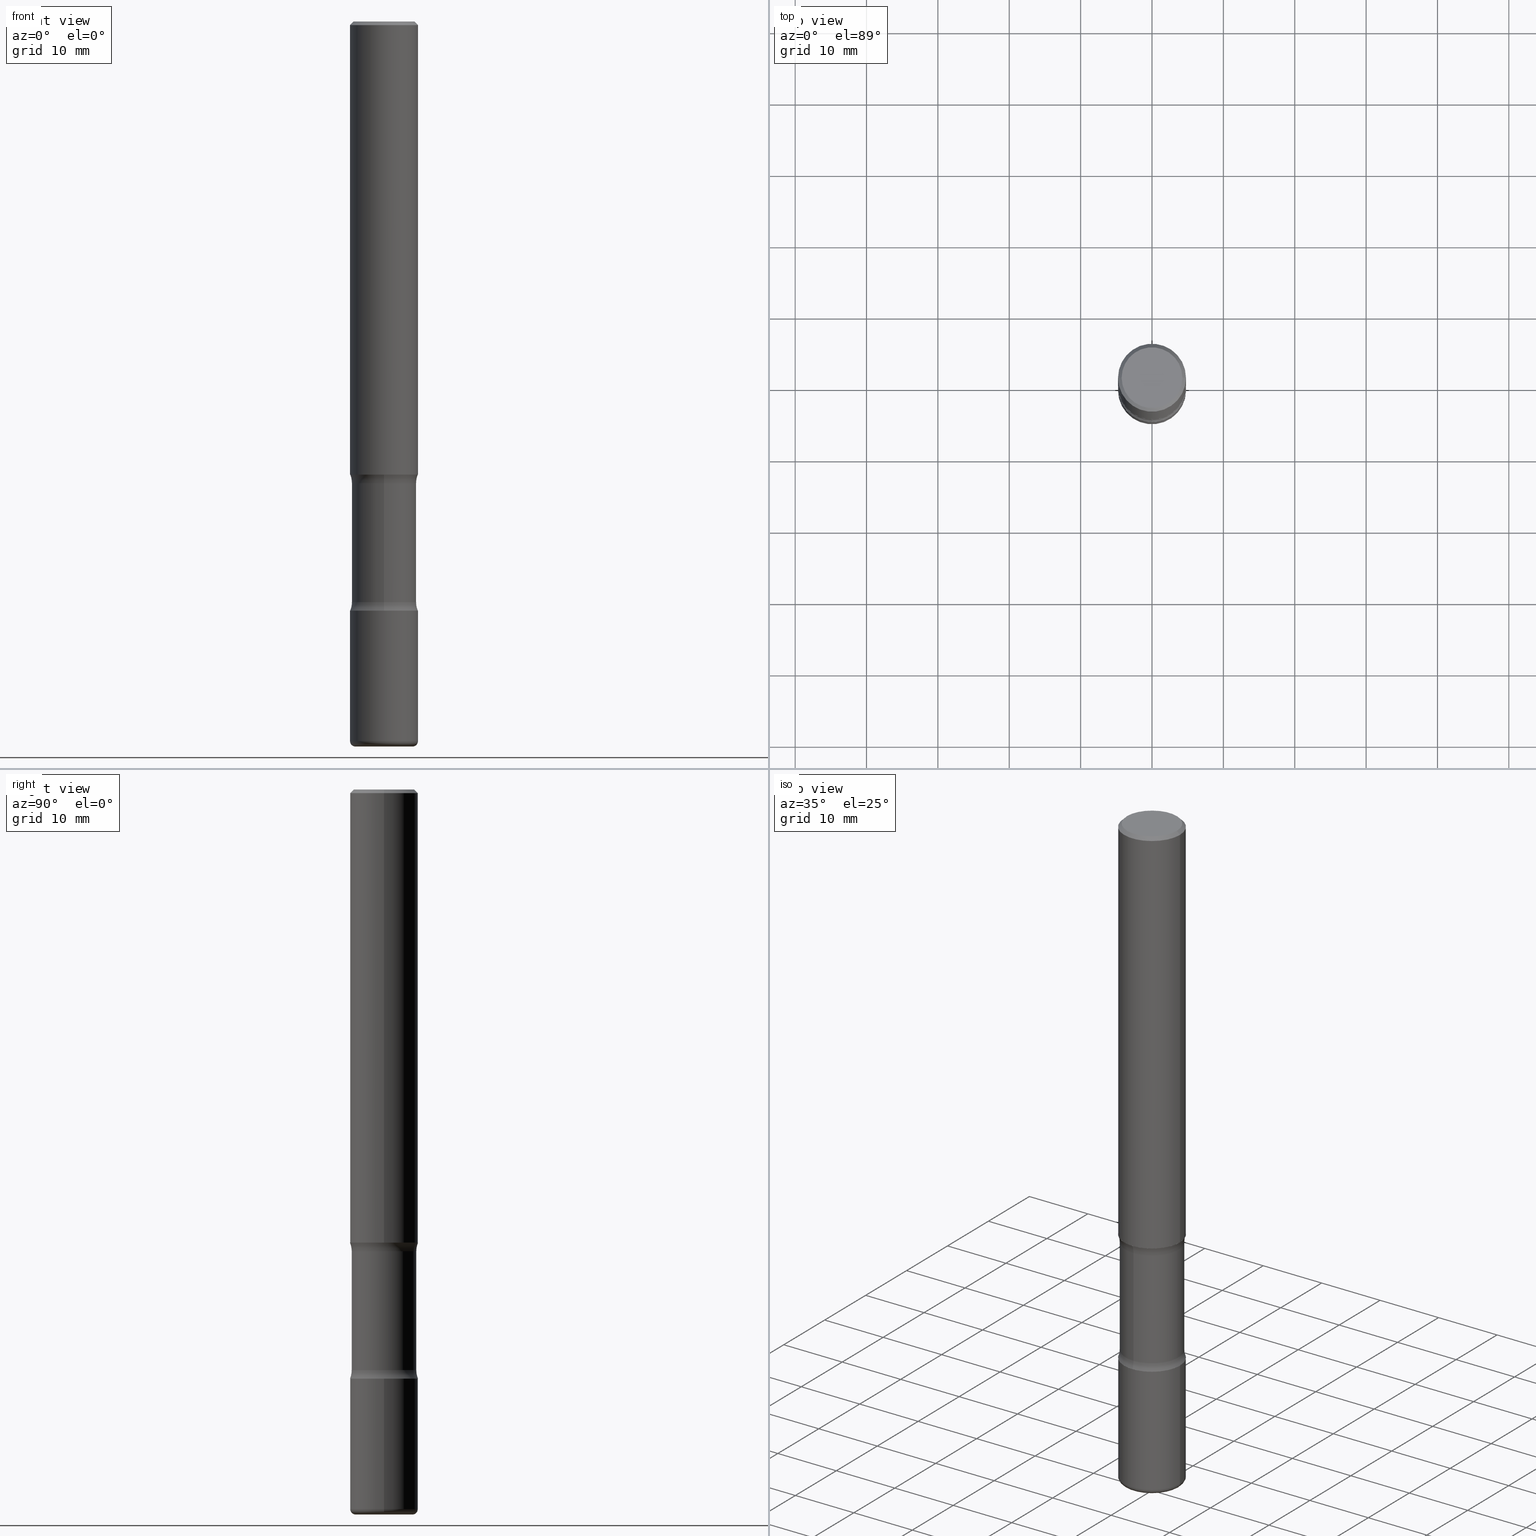
[diagram: canonical four-view strip — front | top / right | iso, engineering-drawing reading convention]
A machine part, canonical four-view strip (front | top / right | iso — engineering-drawing reading convention). The complete STEP part file that produces these views, byte-faithful:
ISO-10303-21;
HEADER;
FILE_DESCRIPTION (( 'STEP AP203' ),
    '1' );
FILE_NAME ('37845.STEP',
    '2024-03-02T00:44:23',
    ( '' ),
    ( '' ),
    'SwSTEP 2.0',
    'SolidWorks 2023',
    '' );
FILE_SCHEMA (( 'CONFIG_CONTROL_DESIGN' ));
ENDSEC;

DATA;
#1 = CARTESIAN_POINT ( 'NONE',  ( 0.000000000000000000, 0.000000000000000000, 0.000000000000000000 ) ) ;
#2 = CLOSED_SHELL ( 'NONE', ( #389, #355, #12, #105, #476, #158 ) ) ;
#3 = CIRCLE ( 'NONE', #180, 0.02999999999999967970 ) ;
#4 = SECURITY_CLASSIFICATION ( '', '', #125 ) ;
#5 = CARTESIAN_POINT ( 'NONE',  ( 2.116710561673727694E-15, 0.3031249999999888201, -3.202504112020092997 ) ) ;
#6 = EDGE_CURVE ( 'NONE', #333, #268, #541, .T. ) ;
#7 = DIRECTION ( 'NONE',  ( -6.982962677686266711E-15, -1.000000000000000000, 3.491481338843145583E-15 ) ) ;
#8 = DIRECTION ( 'NONE',  ( 2.438088387897960049E-29, -3.491481338843145188E-15, -1.000000000000000000 ) ) ;
#9 = ORIENTED_EDGE ( 'NONE', *, *, #119, .F. ) ;
#10 = CARTESIAN_POINT ( 'NONE',  ( 0.000000000000000000, 0.000000000000000000, 0.000000000000000000 ) ) ;
#11 = DIRECTION ( 'NONE',  ( -6.982962677686265922E-15, -1.000000000000000000, 3.329354077496592524E-15 ) ) ;
#12 = ADVANCED_FACE ( 'NONE', ( #447 ), #106, .T. ) ;
#13 = CARTESIAN_POINT ( 'NONE',  ( 1.309305502066236145E-15, 0.1874999999999913125, -2.500000000000000444 ) ) ;
#14 = CARTESIAN_POINT ( 'NONE',  ( 0.1874999999999999722, -1.517048641727346712E-14, -3.970000000000000639 ) ) ;
#15 = VERTEX_POINT ( 'NONE', #152 ) ;
#16 = CONICAL_SURFACE ( 'NONE', #137, 0.1874999999999999167, 0.7853981633974472798 ) ;
#17 = CIRCLE ( 'NONE', #550, 0.1875000000000000833 ) ;
#18 = FACE_OUTER_BOUND ( 'NONE', #209, .T. ) ;
#19 = ADVANCED_FACE ( 'NONE', ( #539 ), #287, .T. ) ;
#20 = ADVANCED_FACE ( 'NONE', ( #324 ), #87, .T. ) ;
#21 = ADVANCED_FACE ( 'NONE', ( #556 ), #179, .T. ) ;
#22 = ORIENTED_EDGE ( 'NONE', *, *, #240, .T. ) ;
#23 = DIRECTION ( 'NONE',  ( -1.000000000000000000, 6.982962677686265922E-15, -4.876176775795935793E-29 ) ) ;
#24 = ORIENTED_EDGE ( 'NONE', *, *, #535, .F. ) ;
#25 = ORIENTED_EDGE ( 'NONE', *, *, #535, .T. ) ;
#26 = DIRECTION ( 'NONE',  ( 2.438088387897960049E-29, -3.491481338843145188E-15, -1.000000000000000000 ) ) ;
#27 = DIRECTION ( 'NONE',  ( 1.000000000000000000, -6.982962677686269866E-15, 0.000000000000000000 ) ) ;
#28 = VERTEX_POINT ( 'NONE', #279 ) ;
#29 = AXIS2_PLACEMENT_3D ( 'NONE', #401, #526, #242 ) ;
#30 = AXIS2_PLACEMENT_3D ( 'NONE', #469, #312, #217 ) ;
#31 = ORIENTED_EDGE ( 'NONE', *, *, #280, .T. ) ;
#32 = DIRECTION ( 'NONE',  ( 1.000000000000000000, -6.982962677686269077E-15, 0.000000000000000000 ) ) ;
#33 = DIRECTION ( 'NONE',  ( -2.445468806185136597E-29, 3.491481338843145583E-15, 1.000000000000000000 ) ) ;
#34 = EDGE_CURVE ( 'NONE', #15, #254, #295, .T. ) ;
#35 = DIRECTION ( 'NONE',  ( 2.558681667686983511E-29, -3.329354077496592524E-15, -1.000000000000000000 ) ) ;
#36 = LINE ( 'NONE', #133, #301 ) ;
#37 = CARTESIAN_POINT ( 'NONE',  ( 6.113672015462842613E-29, -8.728703347107864943E-15, -2.500000000000000000 ) ) ;
#38 = PLANE ( 'NONE',  #471 ) ;
#39 = DIRECTION ( 'NONE',  ( -2.445468806185136597E-29, 3.491481338843145583E-15, 1.000000000000000000 ) ) ;
#40 = PERSON_AND_ORGANIZATION ( #489, #310 ) ;
#41 = PERSON_AND_ORGANIZATION ( #489, #310 ) ;
#42 = CIRCLE ( 'NONE', #382, 0.1875000000000001110 ) ;
#43 = CALENDAR_DATE ( 2024, 1, 3 ) ;
#44 = UNCERTAINTY_MEASURE_WITH_UNIT (LENGTH_MEASURE( 1.000000000000000082E-05 ), #392, 'distance_accuracy_value', 'NONE');
#45 = VERTEX_POINT ( 'NONE', #14 ) ;
#46 = FACE_OUTER_BOUND ( 'NONE', #410, .T. ) ;
#47 = APPROVAL_STATUS ( 'not_yet_approved' ) ;
#48 = DIRECTION ( 'NONE',  ( 6.982962677686266711E-15, 1.000000000000000000, -3.329354077496592130E-15 ) ) ;
#49 = EDGE_CURVE ( 'NONE', #200, #108, #327, .T. ) ;
#50 = CARTESIAN_POINT ( 'NONE',  ( 7.826246762236988201E-29, -1.118918372292999451E-14, -3.202504112020091664 ) ) ;
#51 = DIRECTION ( 'NONE',  ( -1.000000000000000000, 6.982962677686265922E-15, -4.883557194083112901E-29 ) ) ;
#52 = AXIS2_PLACEMENT_3D ( 'NONE', #494, #528, #144 ) ;
#53 = ADVANCED_FACE ( 'NONE', ( #492 ), #170, .F. ) ;
#54 = CIRCLE ( 'NONE', #318, 0.1874999999999999167 ) ;
#55 = LINE ( 'NONE', #58, #207 ) ;
#56 = DIRECTION ( 'NONE',  ( -2.445468806185136877E-29, 3.491481338843145188E-15, 1.000000000000000000 ) ) ;
#57 = ADVANCED_FACE ( 'NONE', ( #331 ), #253, .F. ) ;
#58 = CARTESIAN_POINT ( 'NONE',  ( -0.1875000000000000278, 1.332267629550188046E-15, -9.223003294227947991E-30 ) ) ;
#59 = CARTESIAN_POINT ( 'NONE',  ( 6.150289227201164007E-29, -9.008429421428009851E-15, -2.547495887979908780 ) ) ;
#60 = ORIENTED_EDGE ( 'NONE', *, *, #112, .F. ) ;
#61 = DIRECTION ( 'NONE',  ( 2.558681667686983511E-29, -3.329354077496592524E-15, -1.000000000000000000 ) ) ;
#62 = ADVANCED_FACE ( 'NONE', ( #351 ), #524, .T. ) ;
#63 = CARTESIAN_POINT ( 'NONE',  ( 6.113672015462842613E-29, -8.728703347107864943E-15, -2.500000000000000000 ) ) ;
#64 = ORIENTED_EDGE ( 'NONE', *, *, #391, .T. ) ;
#65 = AXIS2_PLACEMENT_3D ( 'NONE', #427, #33, #168 ) ;
#66 = CIRCLE ( 'NONE', #216, 0.1875000000000001388 ) ;
#67 = DIRECTION ( 'NONE',  ( 2.438088387897960049E-29, -3.491481338843145188E-15, -1.000000000000000000 ) ) ;
#68 = ORIENTED_EDGE ( 'NONE', *, *, #112, .T. ) ;
#69 = EDGE_CURVE ( 'NONE', #254, #409, #54, .T. ) ;
#70 = ORIENTED_EDGE ( 'NONE', *, *, #430, .F. ) ;
#71 = ORIENTED_EDGE ( 'NONE', *, *, #417, .F. ) ;
#72 = AXIS2_PLACEMENT_3D ( 'NONE', #408, #288, #249 ) ;
#73 = AXIS2_PLACEMENT_3D ( 'NONE', #463, #304, #352 ) ;
#74 = DIMENSIONAL_EXPONENTS ( 1.000000000000000000, 0.000000000000000000, 0.000000000000000000, 0.000000000000000000, 0.000000000000000000, 0.000000000000000000, 0.000000000000000000 ) ;
#75 = CYLINDRICAL_SURFACE ( 'NONE', #30, 0.1875000000000001110 ) ;
#76 = EDGE_CURVE ( 'NONE', #127, #409, #518, .T. ) ;
#77 = ORIENTED_EDGE ( 'NONE', *, *, #367, .F. ) ;
#78 = DIRECTION ( 'NONE',  ( -2.438088387897960049E-29, 3.491481338843145188E-15, 1.000000000000000000 ) ) ;
#79 = CC_DESIGN_DATE_AND_TIME_ASSIGNMENT ( #464, #384, ( #4 ) ) ;
#80 = CARTESIAN_POINT ( 'NONE',  ( 0.1875000000000000278, -1.309305502066175008E-15, 9.142831454617381013E-30 ) ) ;
#81 = EDGE_LOOP ( 'NONE', ( #373, #455 ) ) ;
#82 = AXIS2_PLACEMENT_3D ( 'NONE', #532, #51, #277 ) ;
#83 = CIRCLE ( 'NONE', #500, 0.1875000000000001110 ) ;
#84 = EDGE_LOOP ( 'NONE', ( #428, #31, #285, #9 ) ) ;
#85 = DIRECTION ( 'NONE',  ( 2.558681667686983511E-29, -3.329354077496592524E-15, -1.000000000000000000 ) ) ;
#86 = PERSON_AND_ORGANIZATION ( #489, #310 ) ;
#87 = CYLINDRICAL_SURFACE ( 'NONE', #100, 0.1781249999999999500 ) ;
#88 = EDGE_CURVE ( 'NONE', #45, #200, #36, .T. ) ;
#89 = ORIENTED_EDGE ( 'NONE', *, *, #547, .T. ) ;
#90 = DATE_AND_TIME ( #439, #283 ) ;
#91 = DIRECTION ( 'NONE',  ( 2.558681667686983511E-29, -3.329354077496592524E-15, -1.000000000000000000 ) ) ;
#92 = TOROIDAL_SURFACE ( 'NONE', #459, 0.3031249999999999778, 0.1250000000000000278 ) ;
#93 = LOCAL_TIME ( 19, 44, 23.00000000000000000, #178 ) ;
#94 = DATE_AND_TIME ( #482, #171 ) ;
#95 = ADVANCED_FACE ( 'NONE', ( #126 ), #92, .F. ) ;
#96 = CARTESIAN_POINT ( 'NONE',  ( 1.243840226962964471E-15, 0.1781249999999861278, -4.000000000000000888 ) ) ;
#97 = DIRECTION ( 'NONE',  ( -2.445468806185136597E-29, 3.491481338843145583E-15, 1.000000000000000000 ) ) ;
#98 = CARTESIAN_POINT ( 'NONE',  ( 1.243840226962943961E-15, 0.1781249999999887368, -3.202504112020092553 ) ) ;
#99 = DIRECTION ( 'NONE',  ( 1.000000000000000000, -6.982962677686263555E-15, 0.000000000000000000 ) ) ;
#100 = AXIS2_PLACEMENT_3D ( 'NONE', #431, #225, #390 ) ;
#101 = PRODUCT_DEFINITION_FORMATION_WITH_SPECIFIED_SOURCE ( 'ANY', '', #117, .NOT_KNOWN. ) ;
#102 = DIRECTION ( 'NONE',  ( 1.000000000000000000, -6.982962677686277755E-15, 0.000000000000000000 ) ) ;
#103 = VERTEX_POINT ( 'NONE', #404 ) ;
#104 = ORIENTED_EDGE ( 'NONE', *, *, #429, .F. ) ;
#105 = ADVANCED_FACE ( 'NONE', ( #317 ), #506, .T. ) ;
#106 = PLANE ( 'NONE',  #515 ) ;
#107 = ORIENTED_EDGE ( 'NONE', *, *, #88, .F. ) ;
#108 = VERTEX_POINT ( 'NONE', #241 ) ;
#109 = ORIENTED_EDGE ( 'NONE', *, *, #379, .T. ) ;
#110 = AXIS2_PLACEMENT_3D ( 'NONE', #449, #61, #334 ) ;
#111 = LOCAL_TIME ( 19, 44, 23.00000000000000000, #423 ) ;
#112 = EDGE_CURVE ( 'NONE', #262, #164, #342, .T. ) ;
#113 = DIRECTION ( 'NONE',  ( -2.445468806185136597E-29, 3.491481338843145583E-15, 1.000000000000000000 ) ) ;
#114 = VERTEX_POINT ( 'NONE', #365 ) ;
#115 = APPLICATION_CONTEXT ( 'configuration controlled 3d designs of mechanical parts and assemblies' ) ;
#116 = CC_DESIGN_PERSON_AND_ORGANIZATION_ASSIGNMENT ( #40, #183, ( #339 ) ) ;
#117 = PRODUCT ( '37845', '37845', '', ( #345 ) ) ;
#118 = ORIENTED_EDGE ( 'NONE', *, *, #167, .F. ) ;
#119 = EDGE_CURVE ( 'NONE', #28, #377, #248, .T. ) ;
#120 = AXIS2_PLACEMENT_3D ( 'NONE', #438, #395, #322 ) ;
#121 = CARTESIAN_POINT ( 'NONE',  ( 0.000000000000000000, 0.000000000000000000, 0.000000000000000000 ) ) ;
#122 = AXIS2_PLACEMENT_3D ( 'NONE', #380, #549, #166 ) ;
#123 = ADVANCED_FACE ( 'NONE', ( #46 ), #481, .F. ) ;
#124 = DIRECTION ( 'NONE',  ( 6.982962677686266711E-15, 1.000000000000000000, -2.913971193241878794E-15 ) ) ;
#125 = SECURITY_CLASSIFICATION_LEVEL ( 'unclassified' ) ;
#126 = FACE_OUTER_BOUND ( 'NONE', #332, .T. ) ;
#127 = VERTEX_POINT ( 'NONE', #399 ) ;
#128 = CARTESIAN_POINT ( 'NONE',  ( 4.890937612370289799E-31, -6.982962677686315028E-17, -0.02000000000000006981 ) ) ;
#129 = CARTESIAN_POINT ( 'NONE',  ( 4.890937612370289799E-31, -6.982962677686315028E-17, -0.02000000000000006981 ) ) ;
#130 = CIRCLE ( 'NONE', #256, 0.1674999999999998990 ) ;
#131 = DIRECTION ( 'NONE',  ( 1.000000000000000000, -6.982962677686269077E-15, 0.000000000000000000 ) ) ;
#132 = DIRECTION ( 'NONE',  ( 1.000000000000000000, -6.982962677686265922E-15, 4.876176775795935793E-29 ) ) ;
#133 = CARTESIAN_POINT ( 'NONE',  ( 0.1875000000000001110, -1.309305502066175797E-15, 9.142831454617385217E-30 ) ) ;
#134 = DIRECTION ( 'NONE',  ( 6.860497997771532351E-15, 1.000000000000000000, 0.000000000000000000 ) ) ;
#135 = ORIENTED_EDGE ( 'NONE', *, *, #338, .F. ) ;
#136 = DIRECTION ( 'NONE',  ( 2.558681667686983511E-29, -3.329354077496592524E-15, -1.000000000000000000 ) ) ;
#137 = AXIS2_PLACEMENT_3D ( 'NONE', #457, #461, #415 ) ;
#138 = CC_DESIGN_APPROVAL ( #297, ( #339 ) ) ;
#139 = CARTESIAN_POINT ( 'NONE',  ( 6.150289227201164007E-29, -9.008429421428009851E-15, -2.547495887979908780 ) ) ;
#140 = LINE ( 'NONE', #96, #376 ) ;
#141 = CARTESIAN_POINT ( 'NONE',  ( 6.113672015462842613E-29, -8.728703347107864943E-15, -2.500000000000000000 ) ) ;
#142 = CARTESIAN_POINT ( 'NONE',  ( 0.000000000000000000, 0.000000000000000000, 0.000000000000000000 ) ) ;
#143 = EDGE_CURVE ( 'NONE', #268, #377, #414, .T. ) ;
#144 = DIRECTION ( 'NONE',  ( 6.982962677686266711E-15, 1.000000000000000000, -2.913971193241879583E-15 ) ) ;
#145 = CARTESIAN_POINT ( 'NONE',  ( 0.1875000000000000833, -1.265661985330640259E-14, -3.250000000000000444 ) ) ;
#146 = DIRECTION ( 'NONE',  ( 2.558681667686983511E-29, -3.329354077496592524E-15, -1.000000000000000000 ) ) ;
#147 = CARTESIAN_POINT ( 'NONE',  ( -0.1575000000000001676, -1.274207610638513136E-14, -3.970000000000000639 ) ) ;
#148 = AXIS2_PLACEMENT_3D ( 'NONE', #357, #278, #274 ) ;
#149 = ORIENTED_EDGE ( 'NONE', *, *, #76, .T. ) ;
#150 = DIRECTION ( 'NONE',  ( 6.982962677686265133E-15, 1.000000000000000000, -3.067338098149349483E-15 ) ) ;
#151 = CARTESIAN_POINT ( 'NONE',  ( 7.947773620101696182E-29, -1.134731435124022600E-14, -3.250000000000000444 ) ) ;
#152 = CARTESIAN_POINT ( 'NONE',  ( 0.1875000000000001110, -1.003800884917403995E-14, -2.500000000000000000 ) ) ;
#153 = DIRECTION ( 'NONE',  ( 2.558681667686983511E-29, -3.329354077496592524E-15, -1.000000000000000000 ) ) ;
#154 = EDGE_LOOP ( 'NONE', ( #155, #172 ) ) ;
#155 = ORIENTED_EDGE ( 'NONE', *, *, #203, .F. ) ;
#156 = ORIENTED_EDGE ( 'NONE', *, *, #119, .T. ) ;
#157 = EDGE_CURVE ( 'NONE', #15, #502, #400, .T. ) ;
#158 = ADVANCED_FACE ( 'NONE', ( #364 ), #485, .F. ) ;
#159 = EDGE_LOOP ( 'NONE', ( #560, #540, #468, #413 ) ) ;
#160 = CLOSED_SHELL ( 'NONE', ( #521, #62, #218, #57, #437, #21 ) ) ;
#161 = ORIENTED_EDGE ( 'NONE', *, *, #417, .T. ) ;
#162 = TOROIDAL_SURFACE ( 'NONE', #452, 0.3031249999999999778, 0.1250000000000000278 ) ;
#163 = DIRECTION ( 'NONE',  ( -2.445468806185136597E-29, 3.491481338843145583E-15, 1.000000000000000000 ) ) ;
#164 = VERTEX_POINT ( 'NONE', #488 ) ;
#165 = APPLICATION_PROTOCOL_DEFINITION ( 'international standard', 'config_control_design', 1994, #115 ) ;
#166 = DIRECTION ( 'NONE',  ( 1.000000000000000000, -6.982962677686267499E-15, 0.000000000000000000 ) ) ;
#167 = EDGE_CURVE ( 'NONE', #502, #15, #42, .T. ) ;
#168 = DIRECTION ( 'NONE',  ( 1.000000000000000000, -6.982962677686265922E-15, 4.876176775795935793E-29 ) ) ;
#169 = CALENDAR_DATE ( 2024, 1, 3 ) ;
#170 = TOROIDAL_SURFACE ( 'NONE', #72, 0.3031249999999999778, 0.1250000000000000278 ) ;
#171 = LOCAL_TIME ( 19, 44, 23.00000000000000000, #224 ) ;
#172 = ORIENTED_EDGE ( 'NONE', *, *, #547, .F. ) ;
#173 = CARTESIAN_POINT ( 'NONE',  ( 0.1874999999999999167, -1.356173001359024677E-15, -0.02000000000000006981 ) ) ;
#174 = PERSON_AND_ORGANIZATION ( #489, #310 ) ;
#175 = ORIENTED_EDGE ( 'NONE', *, *, #240, .F. ) ;
#176 = DIRECTION ( 'NONE',  ( -2.445468806185136597E-29, 3.491481338843145583E-15, 1.000000000000000000 ) ) ;
#177 =( LENGTH_UNIT ( ) NAMED_UNIT ( * ) SI_UNIT ( $, .METRE. ) );
#178 = COORDINATED_UNIVERSAL_TIME_OFFSET ( 5, 0, .BEHIND. ) ;
#179 = CYLINDRICAL_SURFACE ( 'NONE', #65, 0.1875000000000000278 ) ;
#180 = AXIS2_PLACEMENT_3D ( 'NONE', #147, #363, #491 ) ;
#181 = AXIS2_PLACEMENT_3D ( 'NONE', #323, #208, #286 ) ;
#182 = CYLINDRICAL_SURFACE ( 'NONE', #361, 0.1875000000000000278 ) ;
#183 = PERSON_AND_ORGANIZATION_ROLE ( 'creator' ) ;
#184 = EDGE_CURVE ( 'NONE', #502, #409, #55, .T. ) ;
#185 = FACE_OUTER_BOUND ( 'NONE', #375, .T. ) ;
#186 = APPLICATION_CONTEXT ( 'configuration controlled 3d designs of mechanical parts and assemblies' ) ;
#187 = DIRECTION ( 'NONE',  ( 6.982962677686266711E-15, 1.000000000000000000, -3.067338098149349089E-15 ) ) ;
#188 = CARTESIAN_POINT ( 'NONE',  ( 0.1874999999999999167, -1.356173001359024677E-15, -0.02000000000000006981 ) ) ;
#189 = CIRCLE ( 'NONE', #487, 0.1781249999999999500 ) ;
#190 = CIRCLE ( 'NONE', #181, 0.1250000000000000278 ) ;
#191 = DIRECTION ( 'NONE',  ( -1.000000000000000000, 6.982962677686265922E-15, -4.883557194083112901E-29 ) ) ;
#192 = ORIENTED_EDGE ( 'NONE', *, *, #246, .T. ) ;
#193 = CARTESIAN_POINT ( 'NONE',  ( 7.831623907624765469E-29, -1.118148334468659010E-14, -3.202504112020091664 ) ) ;
#194 = EDGE_CURVE ( 'NONE', #103, #262, #406, .T. ) ;
#195 = CC_DESIGN_DATE_AND_TIME_ASSIGNMENT ( #90, #511, ( #339 ) ) ;
#196 = CARTESIAN_POINT ( 'NONE',  ( 1.309305502066255275E-15, 0.1874999999999887867, -3.250000000000001332 ) ) ;
#197 = EDGE_LOOP ( 'NONE', ( #192, #453 ) ) ;
#198 = AXIS2_PLACEMENT_3D ( 'NONE', #239, #163, #498 ) ;
#199 = APPROVAL_PERSON_ORGANIZATION ( #86, #297, #386 ) ;
#200 = VERTEX_POINT ( 'NONE', #145 ) ;
#201 = ORIENTED_EDGE ( 'NONE', *, *, #338, .T. ) ;
#202 = CARTESIAN_POINT ( 'NONE',  ( -1.286343374582083282E-15, -0.1875000000000114075, -3.250000000000000000 ) ) ;
#203 = EDGE_CURVE ( 'NONE', #220, #205, #470, .T. ) ;
#204 = ORIENTED_EDGE ( 'NONE', *, *, #69, .T. ) ;
#205 = VERTEX_POINT ( 'NONE', #259 ) ;
#206 = DIRECTION ( 'NONE',  ( -1.000000000000000000, 6.982962677686265922E-15, -4.876176775795935793E-29 ) ) ;
#207 = VECTOR ( 'NONE', #231, 39.37007874015748143 ) ;
#208 = DIRECTION ( 'NONE',  ( 1.000000000000000000, -6.860497997771530774E-15, 4.842784365940769113E-29 ) ) ;
#209 = EDGE_LOOP ( 'NONE', ( #505, #22, #213, #107 ) ) ;
#210 = PERSON_AND_ORGANIZATION ( #489, #310 ) ;
#211 = MANIFOLD_SOLID_BREP ( 'Body-Move/Copy2[4]', #335 ) ;
#212 = DESIGN_CONTEXT ( 'detailed design', #115, 'design' ) ;
#213 = ORIENTED_EDGE ( 'NONE', *, *, #49, .F. ) ;
#214 = CIRCLE ( 'NONE', #292, 0.1674999999999998990 ) ;
#215 = DIRECTION ( 'NONE',  ( -2.445468806185136877E-29, 3.491481338843145188E-15, 1.000000000000000000 ) ) ;
#216 = AXIS2_PLACEMENT_3D ( 'NONE', #356, #85, #422 ) ;
#217 = DIRECTION ( 'NONE',  ( 1.000000000000000000, -6.982962677686266711E-15, 4.876176775795935793E-29 ) ) ;
#218 = ADVANCED_FACE ( 'NONE', ( #340 ), #16, .T. ) ;
#219 = MANIFOLD_SOLID_BREP ( 'Body-Move/Copy2[2]', #160 ) ;
#220 = VERTEX_POINT ( 'NONE', #548 ) ;
#221 = LINE ( 'NONE', #173, #302 ) ;
#222 = CC_DESIGN_PERSON_AND_ORGANIZATION_ASSIGNMENT ( #307, #313, ( #4 ) ) ;
#223 = DIRECTION ( 'NONE',  ( 1.000000000000000000, -6.982962677686265922E-15, 0.000000000000000000 ) ) ;
#224 = COORDINATED_UNIVERSAL_TIME_OFFSET ( 5, 0, .BEHIND. ) ;
#225 = DIRECTION ( 'NONE',  ( 2.558681667686983511E-29, -3.329354077496592524E-15, -1.000000000000000000 ) ) ;
#226 = FACE_OUTER_BOUND ( 'NONE', #472, .T. ) ;
#227 = DATE_AND_TIME ( #43, #111 ) ;
#228 = ADVANCED_FACE ( 'NONE', ( #293 ), #162, .F. ) ;
#229 = AXIS2_PLACEMENT_3D ( 'NONE', #232, #234, #11 ) ;
#230 = CC_DESIGN_PERSON_AND_ORGANIZATION_ASSIGNMENT ( #174, #348, ( #101 ) ) ;
#231 = DIRECTION ( 'NONE',  ( -2.445468806185136877E-29, 3.491481338843145188E-15, 1.000000000000000000 ) ) ;
#232 = CARTESIAN_POINT ( 'NONE',  ( 7.947773620101696182E-29, -1.134731435124022600E-14, -3.250000000000000444 ) ) ;
#233 = PERSON_AND_ORGANIZATION ( #489, #310 ) ;
#234 = DIRECTION ( 'NONE',  ( -2.558681667686982950E-29, 3.329354077496592524E-15, 1.000000000000000000 ) ) ;
#235 = DIRECTION ( 'NONE',  ( 1.000000000000000000, -6.982962677686269866E-15, 0.000000000000000000 ) ) ;
#236 = CIRCLE ( 'NONE', #542, 0.1875000000000000833 ) ;
#237 = VECTOR ( 'NONE', #136, 39.37007874015748143 ) ;
#238 = TOROIDAL_SURFACE ( 'NONE', #531, 0.3031249999999999778, 0.1250000000000000278 ) ;
#239 = CARTESIAN_POINT ( 'NONE',  ( 9.781875224740546387E-29, -1.396592535537258233E-14, -4.000000000000000000 ) ) ;
#240 = EDGE_CURVE ( 'NONE', #114, #108, #504, .T. ) ;
#241 = CARTESIAN_POINT ( 'NONE',  ( -0.1875000000000000833, -1.127198000367356963E-14, -3.250000000000000444 ) ) ;
#242 = DIRECTION ( 'NONE',  ( 1.000000000000000000, -6.982962677686269077E-15, 4.883557194083112901E-29 ) ) ;
#243 = ORIENTED_EDGE ( 'NONE', *, *, #194, .T. ) ;
#244 = DIRECTION ( 'NONE',  ( -2.445468806185136597E-29, 3.491481338843145583E-15, 1.000000000000000000 ) ) ;
#245 = EDGE_LOOP ( 'NONE', ( #243, #462, #71, #291 ) ) ;
#246 = EDGE_CURVE ( 'NONE', #127, #368, #214, .T. ) ;
#247 = DIRECTION ( 'NONE',  ( 2.558681667686982950E-29, -3.329354077496592524E-15, -1.000000000000000000 ) ) ;
#248 = CIRCLE ( 'NONE', #360, 0.1781249999999999223 ) ;
#249 = DIRECTION ( 'NONE',  ( 6.982962677686266711E-15, 1.000000000000000000, -3.329354077496592130E-15 ) ) ;
#250 = CIRCLE ( 'NONE', #454, 0.1875000000000001110 ) ;
#251 = ORIENTED_EDGE ( 'NONE', *, *, #269, .F. ) ;
#252 = VERTEX_POINT ( 'NONE', #13 ) ;
#253 = PLANE ( 'NONE',  #393 ) ;
#254 = VERTEX_POINT ( 'NONE', #188 ) ;
#255 = EDGE_LOOP ( 'NONE', ( #493, #118 ) ) ;
#256 = AXIS2_PLACEMENT_3D ( 'NONE', #142, #366, #527 ) ;
#257 = AXIS2_PLACEMENT_3D ( 'NONE', #517, #388, #124 ) ;
#258 = DIRECTION ( 'NONE',  ( -2.445468806185136597E-29, 3.491481338843145583E-15, 1.000000000000000000 ) ) ;
#259 = CARTESIAN_POINT ( 'NONE',  ( -0.1575000000000001676, -1.268786691610376371E-14, -4.000000000000000000 ) ) ;
#260 = DIRECTION ( 'NONE',  ( 1.000000000000000000, -6.982962677686266711E-15, 4.876176775795935793E-29 ) ) ;
#261 = DIRECTION ( 'NONE',  ( -0.7071067811865467956, 2.468850131082249172E-15, -0.7071067811865482389 ) ) ;
#262 = VERTEX_POINT ( 'NONE', #403 ) ;
#263 = CARTESIAN_POINT ( 'NONE',  ( 6.158285255761511137E-29, -8.996978653423909512E-15, -2.547495887979908780 ) ) ;
#264 = ADVANCED_BREP_SHAPE_REPRESENTATION ( '37845', ( #398, #219, #211, #545 ), #445 ) ;
#265 = AXIS2_PLACEMENT_3D ( 'NONE', #63, #247, #319 ) ;
#266 = APPROVAL_PERSON_ORGANIZATION ( #272, #270, #475 ) ;
#267 = COORDINATED_UNIVERSAL_TIME_OFFSET ( 5, 0, .BEHIND. ) ;
#268 = VERTEX_POINT ( 'NONE', #196 ) ;
#269 = EDGE_CURVE ( 'NONE', #205, #114, #3, .T. ) ;
#270 = APPROVAL ( #436, 'UNSPECIFIED' ) ;
#271 = CARTESIAN_POINT ( 'NONE',  ( -0.1874999999999999167, 1.239475875289311118E-15, -0.02000000000000006981 ) ) ;
#272 = PERSON_AND_ORGANIZATION ( #489, #310 ) ;
#273 = AXIS2_PLACEMENT_3D ( 'NONE', #5, #191, #275 ) ;
#274 = DIRECTION ( 'NONE',  ( -1.000000000000000000, 6.982962677686265922E-15, 0.000000000000000000 ) ) ;
#275 = DIRECTION ( 'NONE',  ( -6.982962677686267499E-15, -1.000000000000000000, 0.000000000000000000 ) ) ;
#276 = APPROVAL_DATE_TIME ( #94, #270 ) ;
#277 = DIRECTION ( 'NONE',  ( -6.982962677686267499E-15, -1.000000000000000000, 0.000000000000000000 ) ) ;
#278 = DIRECTION ( 'NONE',  ( 2.445468806185136597E-29, -3.491481338843145583E-15, -1.000000000000000000 ) ) ;
#279 = CARTESIAN_POINT ( 'NONE',  ( -1.254184790217529307E-15, -0.1781250000000111355, -3.202504112020091220 ) ) ;
#280 = EDGE_CURVE ( 'NONE', #262, #103, #189, .T. ) ;
#281 = DIRECTION ( 'NONE',  ( 1.000000000000000000, -6.982962677686269077E-15, 4.883557194083112901E-29 ) ) ;
#282 = TOROIDAL_SURFACE ( 'NONE', #29, 0.1575000000000001676, 0.02999999999999967970 ) ;
#283 = LOCAL_TIME ( 19, 44, 23.00000000000000000, #465 ) ;
#284 = DIRECTION ( 'NONE',  ( 6.982962677686266711E-15, 1.000000000000000000, -3.329354077496592130E-15 ) ) ;
#285 = ORIENTED_EDGE ( 'NONE', *, *, #347, .T. ) ;
#286 = DIRECTION ( 'NONE',  ( 6.860497997771529985E-15, 1.000000000000000000, 0.000000000000000000 ) ) ;
#287 = CYLINDRICAL_SURFACE ( 'NONE', #110, 0.1781249999999999500 ) ;
#288 = DIRECTION ( 'NONE',  ( 2.558681667686983511E-29, -3.329354077496592524E-15, -1.000000000000000000 ) ) ;
#289 = ORIENTED_EDGE ( 'NONE', *, *, #344, .F. ) ;
#290 = APPROVAL ( #350, 'UNSPECIFIED' ) ;
#291 = ORIENTED_EDGE ( 'NONE', *, *, #347, .F. ) ;
#292 = AXIS2_PLACEMENT_3D ( 'NONE', #10, #244, #397 ) ;
#293 = FACE_OUTER_BOUND ( 'NONE', #416, .T. ) ;
#294 = ORIENTED_EDGE ( 'NONE', *, *, #553, .F. ) ;
#295 = LINE ( 'NONE', #80, #309 ) ;
#296 = ORIENTED_EDGE ( 'NONE', *, *, #194, .F. ) ;
#297 = APPROVAL ( #47, 'UNSPECIFIED' ) ;
#298 = EDGE_LOOP ( 'NONE', ( #551, #24 ) ) ;
#299 = ADVANCED_FACE ( 'NONE', ( #495 ), #450, .F. ) ;
#300 = ORIENTED_EDGE ( 'NONE', *, *, #246, .F. ) ;
#301 = VECTOR ( 'NONE', #215, 39.37007874015748143 ) ;
#302 = VECTOR ( 'NONE', #555, 39.37007874015748143 ) ;
#303 = ORIENTED_EDGE ( 'NONE', *, *, #88, .T. ) ;
#304 = DIRECTION ( 'NONE',  ( 2.558681667686983511E-29, -3.329354077496592524E-15, -1.000000000000000000 ) ) ;
#305 = EDGE_LOOP ( 'NONE', ( #294, #300, #149, #64 ) ) ;
#306 = FACE_OUTER_BOUND ( 'NONE', #346, .T. ) ;
#307 = PERSON_AND_ORGANIZATION ( #489, #310 ) ;
#308 = DIRECTION ( 'NONE',  ( 6.982962677686266711E-15, 1.000000000000000000, -2.913971193241879583E-15 ) ) ;
#309 = VECTOR ( 'NONE', #440, 39.37007874015748143 ) ;
#310 = ORGANIZATION ( 'UNSPECIFIED', 'UNSPECIFIED', '' ) ;
#311 = APPROVAL_PERSON_ORGANIZATION ( #41, #290, #474 ) ;
#312 = DIRECTION ( 'NONE',  ( -2.445468806185136597E-29, 3.491481338843145583E-15, 1.000000000000000000 ) ) ;
#313 = PERSON_AND_ORGANIZATION_ROLE ( 'classification_officer' ) ;
#314 = CALENDAR_DATE ( 2024, 1, 3 ) ;
#315 = CARTESIAN_POINT ( 'NONE',  ( 9.708511160554993993E-29, -1.386118091520729054E-14, -3.970000000000000639 ) ) ;
#316 = CC_DESIGN_PERSON_AND_ORGANIZATION_ASSIGNMENT ( #233, #396, ( #101 ) ) ;
#317 = FACE_OUTER_BOUND ( 'NONE', #387, .T. ) ;
#318 = AXIS2_PLACEMENT_3D ( 'NONE', #129, #39, #223 ) ;
#319 = DIRECTION ( 'NONE',  ( 6.982962677686265922E-15, 1.000000000000000000, -3.329354077496592524E-15 ) ) ;
#320 = CARTESIAN_POINT ( 'NONE',  ( 0.1674999999999998990, -1.252653207992877500E-15, 8.469775550109235181E-30 ) ) ;
#321 = DIRECTION ( 'NONE',  ( 6.982962677686266711E-15, 1.000000000000000000, -3.067338098149349089E-15 ) ) ;
#322 = DIRECTION ( 'NONE',  ( 1.000000000000000000, -6.982962677686263555E-15, 0.000000000000000000 ) ) ;
#323 = CARTESIAN_POINT ( 'NONE',  ( -2.079588455574416777E-15, -0.3031250000000111355, -3.202504112020090776 ) ) ;
#324 = FACE_OUTER_BOUND ( 'NONE', #245, .T. ) ;
#325 = CARTESIAN_POINT ( 'NONE',  ( 6.158285255761511137E-29, -8.996978653423909512E-15, -2.547495887979908780 ) ) ;
#326 = DIRECTION ( 'NONE',  ( -1.000000000000000000, 6.982962677686265922E-15, -4.876176775795935793E-29 ) ) ;
#327 = CIRCLE ( 'NONE', #353, 0.1875000000000000833 ) ;
#328 = ORIENTED_EDGE ( 'NONE', *, *, #143, .F. ) ;
#329 = DIRECTION ( 'NONE',  ( -2.445468806185136597E-29, 3.491481338843145583E-15, 1.000000000000000000 ) ) ;
#330 = EDGE_CURVE ( 'NONE', #262, #28, #359, .T. ) ;
#331 = FACE_OUTER_BOUND ( 'NONE', #197, .T. ) ;
#332 = EDGE_LOOP ( 'NONE', ( #456, #109, #156, #328 ) ) ;
#333 = VERTEX_POINT ( 'NONE', #202 ) ;
#334 = DIRECTION ( 'NONE',  ( 6.982962677686266711E-15, 1.000000000000000000, -3.067338098149349089E-15 ) ) ;
#335 = CLOSED_SHELL ( 'NONE', ( #20, #95, #228, #467, #299, #123, #53, #19 ) ) ;
#336 = CIRCLE ( 'NONE', #82, 0.1250000000000000278 ) ;
#337 = ORIENTED_EDGE ( 'NONE', *, *, #497, .T. ) ;
#338 = EDGE_CURVE ( 'NONE', #103, #252, #336, .T. ) ;
#339 = PRODUCT_DEFINITION ( 'UNKNOWN', '', #101, #212 ) ;
#340 = FACE_OUTER_BOUND ( 'NONE', #305, .T. ) ;
#341 = ORIENTED_EDGE ( 'NONE', *, *, #520, .F. ) ;
#342 = CIRCLE ( 'NONE', #425, 0.1250000000000000278 ) ;
#343 = CC_DESIGN_SECURITY_CLASSIFICATION ( #4, ( #101 ) ) ;
#344 = EDGE_CURVE ( 'NONE', #108, #200, #236, .T. ) ;
#345 = MECHANICAL_CONTEXT ( 'NONE', #186, 'mechanical' ) ;
#346 = EDGE_LOOP ( 'NONE', ( #371, #538, #496, #362 ) ) ;
#347 = EDGE_CURVE ( 'NONE', #103, #377, #140, .T. ) ;
#348 = PERSON_AND_ORGANIZATION_ROLE ( 'design_supplier' ) ;
#349 = DIRECTION ( 'NONE',  ( 1.000000000000000000, -6.982962677686265922E-15, 4.876176775795935793E-29 ) ) ;
#350 = APPROVAL_STATUS ( 'not_yet_approved' ) ;
#351 = FACE_OUTER_BOUND ( 'NONE', #448, .T. ) ;
#352 = DIRECTION ( 'NONE',  ( 6.982962677686265133E-15, 1.000000000000000000, -3.067338098149349483E-15 ) ) ;
#353 = AXIS2_PLACEMENT_3D ( 'NONE', #444, #113, #27 ) ;
#354 = CC_DESIGN_APPROVAL ( #290, ( #4 ) ) ;
#355 = ADVANCED_FACE ( 'NONE', ( #185 ), #282, .T. ) ;
#356 = CARTESIAN_POINT ( 'NONE',  ( 6.028762369336457147E-29, -8.850298793117778356E-15, -2.500000000000000000 ) ) ;
#357 = CARTESIAN_POINT ( 'NONE',  ( 4.890937612370289799E-31, -6.982962677686315028E-17, -0.02000000000000006981 ) ) ;
#358 = APPLICATION_PROTOCOL_DEFINITION ( 'international standard', 'config_control_design', 1994, #186 ) ;
#359 = LINE ( 'NONE', #522, #237 ) ;
#360 = AXIS2_PLACEMENT_3D ( 'NONE', #50, #146, #150 ) ;
#361 = AXIS2_PLACEMENT_3D ( 'NONE', #554, #473, #349 ) ;
#362 = ORIENTED_EDGE ( 'NONE', *, *, #34, .F. ) ;
#363 = DIRECTION ( 'NONE',  ( 7.105427357601001859E-15, 1.000000000000000000, -3.491481338843145583E-15 ) ) ;
#364 = FACE_OUTER_BOUND ( 'NONE', #81, .T. ) ;
#365 = CARTESIAN_POINT ( 'NONE',  ( -0.1874999999999999722, -1.252891328565710269E-14, -3.970000000000000639 ) ) ;
#366 = DIRECTION ( 'NONE',  ( -2.445468806185136597E-29, 3.491481338843145583E-15, 1.000000000000000000 ) ) ;
#367 = EDGE_CURVE ( 'NONE', #368, #127, #130, .T. ) ;
#368 = VERTEX_POINT ( 'NONE', #320 ) ;
#369 = CARTESIAN_POINT ( 'NONE',  ( -0.1875000000000001110, 1.332267629550188637E-15, -9.223003294227953596E-30 ) ) ;
#370 = ORIENTED_EDGE ( 'NONE', *, *, #143, .T. ) ;
#371 = ORIENTED_EDGE ( 'NONE', *, *, #157, .T. ) ;
#372 = ORIENTED_EDGE ( 'NONE', *, *, #76, .F. ) ;
#373 = ORIENTED_EDGE ( 'NONE', *, *, #49, .T. ) ;
#374 = EDGE_CURVE ( 'NONE', #220, #45, #442, .T. ) ;
#375 = EDGE_LOOP ( 'NONE', ( #533, #405, #70, #418 ) ) ;
#376 = VECTOR ( 'NONE', #91, 39.37007874015748143 ) ;
#377 = VERTEX_POINT ( 'NONE', #98 ) ;
#378 = PERSON_AND_ORGANIZATION_ROLE ( 'design_owner' ) ;
#379 = EDGE_CURVE ( 'NONE', #333, #28, #190, .T. ) ;
#380 = CARTESIAN_POINT ( 'NONE',  ( 9.781875224740546387E-29, -1.396592535537258233E-14, -4.000000000000000000 ) ) ;
#381 = CARTESIAN_POINT ( 'NONE',  ( 7.947773620101696182E-29, -1.134731435124022600E-14, -3.250000000000000444 ) ) ;
#382 = AXIS2_PLACEMENT_3D ( 'NONE', #141, #446, #99 ) ;
#383 = AXIS2_PLACEMENT_3D ( 'NONE', #121, #421, #260 ) ;
#384 = DATE_TIME_ROLE ( 'classification_date' ) ;
#385 = CARTESIAN_POINT ( 'NONE',  ( -0.1875000000000000833, -3.066998857392172722E-15, -2.500000000000000000 ) ) ;
#386 = APPROVAL_ROLE ( '' ) ;
#387 = EDGE_LOOP ( 'NONE', ( #251, #89, #458, #341 ) ) ;
#388 = DIRECTION ( 'NONE',  ( 2.558681667686983511E-29, -3.329354077496592524E-15, -1.000000000000000000 ) ) ;
#389 = ADVANCED_FACE ( 'NONE', ( #18 ), #411, .T. ) ;
#390 = DIRECTION ( 'NONE',  ( 6.982962677686266711E-15, 1.000000000000000000, -3.067338098149349089E-15 ) ) ;
#391 = EDGE_CURVE ( 'NONE', #409, #254, #435, .T. ) ;
#392 =( CONVERSION_BASED_UNIT ( 'INCH', #432 ) LENGTH_UNIT ( ) NAMED_UNIT ( #74 ) );
#393 = AXIS2_PLACEMENT_3D ( 'NONE', #412, #26, #206 ) ;
#394 = APPROVAL_DATE_TIME ( #477, #297 ) ;
#395 = DIRECTION ( 'NONE',  ( -2.445468806185136597E-29, 3.491481338843145583E-15, 1.000000000000000000 ) ) ;
#396 = PERSON_AND_ORGANIZATION_ROLE ( 'creator' ) ;
#397 = DIRECTION ( 'NONE',  ( 1.000000000000000000, -6.982962677686265922E-15, 4.876176775795935793E-29 ) ) ;
#398 = MANIFOLD_SOLID_BREP ( 'Body-Move/Copy2[1]', #2 ) ;
#399 = CARTESIAN_POINT ( 'NONE',  ( -0.1674999999999998990, 1.204561061900880061E-15, -8.301862719484106184E-30 ) ) ;
#400 = CIRCLE ( 'NONE', #120, 0.1875000000000001110 ) ;
#401 = CARTESIAN_POINT ( 'NONE',  ( 9.708511160554993993E-29, -1.386118091520729054E-14, -3.970000000000000639 ) ) ;
#402 = DIRECTION ( 'NONE',  ( 1.000000000000000000, -6.860497997771530774E-15, 4.842784365940769113E-29 ) ) ;
#403 = CARTESIAN_POINT ( 'NONE',  ( -1.254184790217547253E-15, -0.1781250000000089706, -2.547495887979908336 ) ) ;
#404 = CARTESIAN_POINT ( 'NONE',  ( 1.243840226962927197E-15, 0.1781249999999909572, -2.547495887979909224 ) ) ;
#405 = ORIENTED_EDGE ( 'NONE', *, *, #269, .T. ) ;
#406 = CIRCLE ( 'NONE', #434, 0.1781249999999999500 ) ;
#407 = LOCAL_TIME ( 19, 44, 23.00000000000000000, #267 ) ;
#408 = CARTESIAN_POINT ( 'NONE',  ( 7.831623907624765469E-29, -1.118148334468659010E-14, -3.202504112020091664 ) ) ;
#409 = VERTEX_POINT ( 'NONE', #558 ) ;
#410 = EDGE_LOOP ( 'NONE', ( #509, #529 ) ) ;
#411 = CYLINDRICAL_SURFACE ( 'NONE', #383, 0.1875000000000001110 ) ;
#412 = CARTESIAN_POINT ( 'NONE',  ( 1.169646248512448806E-15, 0.1674999999999998990, -5.848231242562264739E-16 ) ) ;
#413 = ORIENTED_EDGE ( 'NONE', *, *, #391, .F. ) ;
#414 = CIRCLE ( 'NONE', #273, 0.1250000000000000278 ) ;
#415 = DIRECTION ( 'NONE',  ( -1.000000000000000000, 6.982962677686265922E-15, 0.000000000000000000 ) ) ;
#416 = EDGE_LOOP ( 'NONE', ( #534, #68, #25, #135 ) ) ;
#417 = EDGE_CURVE ( 'NONE', #377, #28, #543, .T. ) ;
#418 = ORIENTED_EDGE ( 'NONE', *, *, #374, .F. ) ;
#419 = FACE_OUTER_BOUND ( 'NONE', #499, .T. ) ;
#420 = PRODUCT_DEFINITION_SHAPE ( 'NONE', 'NONE',  #339 ) ;
#421 = DIRECTION ( 'NONE',  ( -2.445468806185136597E-29, 3.491481338843145583E-15, 1.000000000000000000 ) ) ;
#422 = DIRECTION ( 'NONE',  ( 6.982962677686266711E-15, 1.000000000000000000, -2.913971193241878794E-15 ) ) ;
#423 = COORDINATED_UNIVERSAL_TIME_OFFSET ( 5, 0, .BEHIND. ) ;
#424 = DIRECTION ( 'NONE',  ( 1.000000000000000000, -6.982962677686265922E-15, 0.000000000000000000 ) ) ;
#425 = AXIS2_PLACEMENT_3D ( 'NONE', #441, #402, #134 ) ;
#426 = CIRCLE ( 'NONE', #257, 0.1875000000000001388 ) ;
#427 = CARTESIAN_POINT ( 'NONE',  ( 0.000000000000000000, 0.000000000000000000, 0.000000000000000000 ) ) ;
#428 = ORIENTED_EDGE ( 'NONE', *, *, #330, .F. ) ;
#429 = EDGE_CURVE ( 'NONE', #268, #333, #17, .T. ) ;
#430 = EDGE_CURVE ( 'NONE', #45, #114, #250, .T. ) ;
#431 = CARTESIAN_POINT ( 'NONE',  ( 9.866784870866931853E-29, -1.384432990936266734E-14, -4.000000000000000000 ) ) ;
#432 = LENGTH_MEASURE_WITH_UNIT ( LENGTH_MEASURE( 0.02539999999999999897 ), #177 );
#433 =( NAMED_UNIT ( * ) PLANE_ANGLE_UNIT ( ) SI_UNIT ( $, .RADIAN. ) );
#434 = AXIS2_PLACEMENT_3D ( 'NONE', #139, #537, #321 ) ;
#435 = CIRCLE ( 'NONE', #480, 0.1874999999999999167 ) ;
#436 = APPROVAL_STATUS ( 'not_yet_approved' ) ;
#437 = ADVANCED_FACE ( 'NONE', ( #519 ), #38, .F. ) ;
#438 = CARTESIAN_POINT ( 'NONE',  ( 6.113672015462842613E-29, -8.728703347107864943E-15, -2.500000000000000000 ) ) ;
#439 = CALENDAR_DATE ( 2024, 1, 3 ) ;
#440 = DIRECTION ( 'NONE',  ( -2.445468806185136877E-29, 3.491481338843145188E-15, 1.000000000000000000 ) ) ;
#441 = CARTESIAN_POINT ( 'NONE',  ( -2.079588455574433343E-15, -0.3031250000000089706, -2.547495887979907891 ) ) ;
#442 = CIRCLE ( 'NONE', #557, 0.02999999999999967970 ) ;
#443 = DIRECTION ( 'NONE',  ( 2.558681667686983511E-29, -3.329354077496592524E-15, -1.000000000000000000 ) ) ;
#444 = CARTESIAN_POINT ( 'NONE',  ( 7.947773620101696182E-29, -1.134731435124022600E-14, -3.250000000000000444 ) ) ;
#445 =( GEOMETRIC_REPRESENTATION_CONTEXT ( 3 ) GLOBAL_UNCERTAINTY_ASSIGNED_CONTEXT ( ( #44 ) ) GLOBAL_UNIT_ASSIGNED_CONTEXT ( ( #392, #433, #523 ) ) REPRESENTATION_CONTEXT ( 'NONE', 'WORKASPACE' ) );
#446 = DIRECTION ( 'NONE',  ( -2.445468806185136597E-29, 3.491481338843145583E-15, 1.000000000000000000 ) ) ;
#447 = FACE_OUTER_BOUND ( 'NONE', #154, .T. ) ;
#448 = EDGE_LOOP ( 'NONE', ( #77, #451, #204, #372 ) ) ;
#449 = CARTESIAN_POINT ( 'NONE',  ( 9.866784870866931853E-29, -1.384432990936266734E-14, -4.000000000000000000 ) ) ;
#450 = PLANE ( 'NONE',  #265 ) ;
#451 = ORIENTED_EDGE ( 'NONE', *, *, #553, .T. ) ;
#452 = AXIS2_PLACEMENT_3D ( 'NONE', #325, #486, #48 ) ;
#453 = ORIENTED_EDGE ( 'NONE', *, *, #367, .T. ) ;
#454 = AXIS2_PLACEMENT_3D ( 'NONE', #315, #512, #131 ) ;
#455 = ORIENTED_EDGE ( 'NONE', *, *, #344, .T. ) ;
#456 = ORIENTED_EDGE ( 'NONE', *, *, #6, .F. ) ;
#457 = CARTESIAN_POINT ( 'NONE',  ( 4.890937612370289799E-31, -6.982962677686315028E-17, -0.02000000000000006981 ) ) ;
#458 = ORIENTED_EDGE ( 'NONE', *, *, #374, .T. ) ;
#459 = AXIS2_PLACEMENT_3D ( 'NONE', #193, #443, #284 ) ;
#460 = CC_DESIGN_APPROVAL ( #270, ( #101 ) ) ;
#461 = DIRECTION ( 'NONE',  ( 2.445468806185136597E-29, -3.491481338843145583E-15, -1.000000000000000000 ) ) ;
#462 = ORIENTED_EDGE ( 'NONE', *, *, #330, .T. ) ;
#463 = CARTESIAN_POINT ( 'NONE',  ( 7.826246762236988201E-29, -1.118918372292999451E-14, -3.202504112020091664 ) ) ;
#464 = DATE_AND_TIME ( #169, #93 ) ;
#465 = COORDINATED_UNIVERSAL_TIME_OFFSET ( 5, 0, .BEHIND. ) ;
#466 = VECTOR ( 'NONE', #261, 39.37007874015748143 ) ;
#467 = ADVANCED_FACE ( 'NONE', ( #226 ), #238, .F. ) ;
#468 = ORIENTED_EDGE ( 'NONE', *, *, #34, .T. ) ;
#469 = CARTESIAN_POINT ( 'NONE',  ( 0.000000000000000000, 0.000000000000000000, 0.000000000000000000 ) ) ;
#470 = CIRCLE ( 'NONE', #198, 0.1575000000000001676 ) ;
#471 = AXIS2_PLACEMENT_3D ( 'NONE', #37, #78, #132 ) ;
#472 = EDGE_LOOP ( 'NONE', ( #60, #296, #201, #337 ) ) ;
#473 = DIRECTION ( 'NONE',  ( -2.445468806185136597E-29, 3.491481338843145583E-15, 1.000000000000000000 ) ) ;
#474 = APPROVAL_ROLE ( '' ) ;
#475 = APPROVAL_ROLE ( '' ) ;
#476 = ADVANCED_FACE ( 'NONE', ( #419 ), #75, .T. ) ;
#477 = DATE_AND_TIME ( #314, #407 ) ;
#478 = EDGE_LOOP ( 'NONE', ( #501, #104, #370, #161 ) ) ;
#479 = AXIS2_PLACEMENT_3D ( 'NONE', #484, #97, #281 ) ;
#480 = AXIS2_PLACEMENT_3D ( 'NONE', #128, #176, #424 ) ;
#481 = PLANE ( 'NONE',  #229 ) ;
#482 = CALENDAR_DATE ( 2024, 1, 3 ) ;
#483 = CARTESIAN_POINT ( 'NONE',  ( 0.1575000000000001676, -1.496099753694287723E-14, -3.970000000000000639 ) ) ;
#484 = CARTESIAN_POINT ( 'NONE',  ( 9.708511160554993993E-29, -1.386118091520729054E-14, -3.970000000000000639 ) ) ;
#485 = PLANE ( 'NONE',  #530 ) ;
#486 = DIRECTION ( 'NONE',  ( 2.558681667686983511E-29, -3.329354077496592524E-15, -1.000000000000000000 ) ) ;
#487 = AXIS2_PLACEMENT_3D ( 'NONE', #59, #153, #187 ) ;
#488 = CARTESIAN_POINT ( 'NONE',  ( -1.286343374582102609E-15, -0.1875000000000089651, -2.499999999999999556 ) ) ;
#489 = PERSON ( 'UNSPECIFIED', 'UNSPECIFIED', 'UNSPECIFIED', ('UNSPECIFIED'), ('UNSPECIFIED'), ('UNSPECIFIED') ) ;
#490 = ORIENTED_EDGE ( 'NONE', *, *, #520, .T. ) ;
#491 = DIRECTION ( 'NONE',  ( -1.000000000000000000, 7.105427357601001859E-15, 0.000000000000000000 ) ) ;
#492 = FACE_OUTER_BOUND ( 'NONE', #478, .T. ) ;
#493 = ORIENTED_EDGE ( 'NONE', *, *, #157, .F. ) ;
#494 = CARTESIAN_POINT ( 'NONE',  ( 7.947773620101696182E-29, -1.134731435124022600E-14, -3.250000000000000444 ) ) ;
#495 = FACE_OUTER_BOUND ( 'NONE', #298, .T. ) ;
#496 = ORIENTED_EDGE ( 'NONE', *, *, #69, .F. ) ;
#497 = EDGE_CURVE ( 'NONE', #252, #164, #426, .T. ) ;
#498 = DIRECTION ( 'NONE',  ( 1.000000000000000000, -6.982962677686267499E-15, 0.000000000000000000 ) ) ;
#499 = EDGE_LOOP ( 'NONE', ( #175, #490, #303, #289 ) ) ;
#500 = AXIS2_PLACEMENT_3D ( 'NONE', #510, #258, #32 ) ;
#501 = ORIENTED_EDGE ( 'NONE', *, *, #379, .F. ) ;
#502 = VERTEX_POINT ( 'NONE', #385 ) ;
#503 = DIRECTION ( 'NONE',  ( 0.000000000000000000, 0.000000000000000000, 1.000000000000000000 ) ) ;
#504 = LINE ( 'NONE', #369, #516 ) ;
#505 = ORIENTED_EDGE ( 'NONE', *, *, #430, .T. ) ;
#506 = TOROIDAL_SURFACE ( 'NONE', #479, 0.1575000000000001676, 0.02999999999999967970 ) ;
#507 = DIRECTION ( 'NONE',  ( 6.982962677686266711E-15, 1.000000000000000000, -3.329354077496592130E-15 ) ) ;
#508 = SHAPE_DEFINITION_REPRESENTATION ( #420, #264 ) ;
#509 = ORIENTED_EDGE ( 'NONE', *, *, #429, .T. ) ;
#510 = CARTESIAN_POINT ( 'NONE',  ( 9.708511160554993993E-29, -1.386118091520729054E-14, -3.970000000000000639 ) ) ;
#511 = DATE_TIME_ROLE ( 'creation_date' ) ;
#512 = DIRECTION ( 'NONE',  ( -2.445468806185136597E-29, 3.491481338843145583E-15, 1.000000000000000000 ) ) ;
#513 = APPROVAL_DATE_TIME ( #227, #290 ) ;
#514 = CC_DESIGN_PERSON_AND_ORGANIZATION_ASSIGNMENT ( #210, #378, ( #117 ) ) ;
#515 = AXIS2_PLACEMENT_3D ( 'NONE', #536, #67, #23 ) ;
#516 = VECTOR ( 'NONE', #56, 39.37007874015748143 ) ;
#517 = CARTESIAN_POINT ( 'NONE',  ( 6.028762369336457147E-29, -8.850298793117778356E-15, -2.500000000000000000 ) ) ;
#518 = LINE ( 'NONE', #271, #466 ) ;
#519 = FACE_OUTER_BOUND ( 'NONE', #255, .T. ) ;
#520 = EDGE_CURVE ( 'NONE', #114, #45, #83, .T. ) ;
#521 = ADVANCED_FACE ( 'NONE', ( #306 ), #182, .T. ) ;
#522 = CARTESIAN_POINT ( 'NONE',  ( -1.222026205852954821E-15, -0.1781250000000138001, -3.999999999999999556 ) ) ;
#523 =( NAMED_UNIT ( * ) SI_UNIT ( $, .STERADIAN. ) SOLID_ANGLE_UNIT ( ) );
#524 = CONICAL_SURFACE ( 'NONE', #148, 0.1874999999999999167, 0.7853981633974472798 ) ;
#525 = CARTESIAN_POINT ( 'NONE',  ( 7.947773620101696182E-29, -1.134731435124022600E-14, -3.250000000000000444 ) ) ;
#526 = DIRECTION ( 'NONE',  ( -2.445468806185136597E-29, 3.491481338843145583E-15, 1.000000000000000000 ) ) ;
#527 = DIRECTION ( 'NONE',  ( 1.000000000000000000, -6.982962677686265922E-15, 4.876176775795935793E-29 ) ) ;
#528 = DIRECTION ( 'NONE',  ( 2.558681667686983511E-29, -3.329354077496592524E-15, -1.000000000000000000 ) ) ;
#529 = ORIENTED_EDGE ( 'NONE', *, *, #6, .T. ) ;
#530 = AXIS2_PLACEMENT_3D ( 'NONE', #525, #8, #326 ) ;
#531 = AXIS2_PLACEMENT_3D ( 'NONE', #263, #552, #507 ) ;
#532 = CARTESIAN_POINT ( 'NONE',  ( 2.116710561673711128E-15, 0.3031249999999910405, -2.547495887979910112 ) ) ;
#533 = ORIENTED_EDGE ( 'NONE', *, *, #203, .T. ) ;
#534 = ORIENTED_EDGE ( 'NONE', *, *, #280, .F. ) ;
#535 = EDGE_CURVE ( 'NONE', #164, #252, #66, .T. ) ;
#536 = CARTESIAN_POINT ( 'NONE',  ( 9.781875224740546387E-29, -1.396592535537258233E-14, -4.000000000000000000 ) ) ;
#537 = DIRECTION ( 'NONE',  ( 2.558681667686983511E-29, -3.329354077496592524E-15, -1.000000000000000000 ) ) ;
#538 = ORIENTED_EDGE ( 'NONE', *, *, #184, .T. ) ;
#539 = FACE_OUTER_BOUND ( 'NONE', #84, .T. ) ;
#540 = ORIENTED_EDGE ( 'NONE', *, *, #167, .T. ) ;
#541 = CIRCLE ( 'NONE', #52, 0.1875000000000000833 ) ;
#542 = AXIS2_PLACEMENT_3D ( 'NONE', #151, #329, #235 ) ;
#543 = CIRCLE ( 'NONE', #73, 0.1781249999999999223 ) ;
#544 = DIRECTION ( 'NONE',  ( 1.000000000000000000, 0.000000000000000000, 0.000000000000000000 ) ) ;
#545 = AXIS2_PLACEMENT_3D ( 'NONE', #1, #503, #544 ) ;
#546 = PRODUCT_RELATED_PRODUCT_CATEGORY ( 'detail', '', ( #117 ) ) ;
#547 = EDGE_CURVE ( 'NONE', #205, #220, #559, .T. ) ;
#548 = CARTESIAN_POINT ( 'NONE',  ( 0.1575000000000001676, -1.506574197710817060E-14, -4.000000000000000000 ) ) ;
#549 = DIRECTION ( 'NONE',  ( -2.445468806185136597E-29, 3.491481338843145583E-15, 1.000000000000000000 ) ) ;
#550 = AXIS2_PLACEMENT_3D ( 'NONE', #381, #35, #308 ) ;
#551 = ORIENTED_EDGE ( 'NONE', *, *, #497, .F. ) ;
#552 = DIRECTION ( 'NONE',  ( 2.558681667686983511E-29, -3.329354077496592524E-15, -1.000000000000000000 ) ) ;
#553 = EDGE_CURVE ( 'NONE', #368, #254, #221, .T. ) ;
#554 = CARTESIAN_POINT ( 'NONE',  ( 0.000000000000000000, 0.000000000000000000, 0.000000000000000000 ) ) ;
#555 = DIRECTION ( 'NONE',  ( 0.7071067811865467956, -7.319954787623254468E-15, -0.7071067811865482389 ) ) ;
#556 = FACE_OUTER_BOUND ( 'NONE', #159, .T. ) ;
#557 = AXIS2_PLACEMENT_3D ( 'NONE', #483, #7, #102 ) ;
#558 = CARTESIAN_POINT ( 'NONE',  ( -0.1874999999999999167, 1.239475875289311118E-15, -0.02000000000000006981 ) ) ;
#559 = CIRCLE ( 'NONE', #122, 0.1575000000000001676 ) ;
#560 = ORIENTED_EDGE ( 'NONE', *, *, #184, .F. ) ;
ENDSEC;
END-ISO-10303-21;
